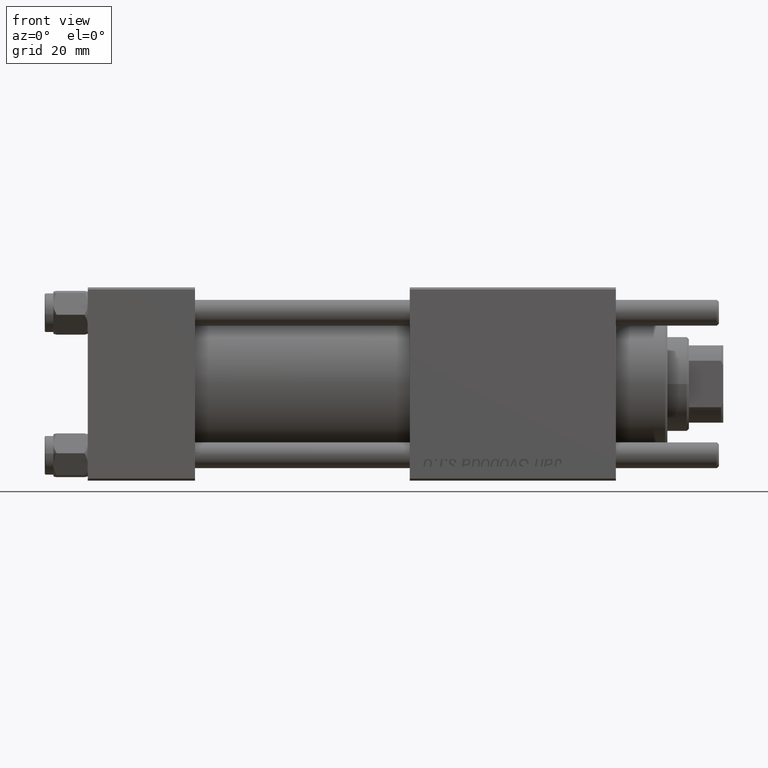
[diagram: clean part render]
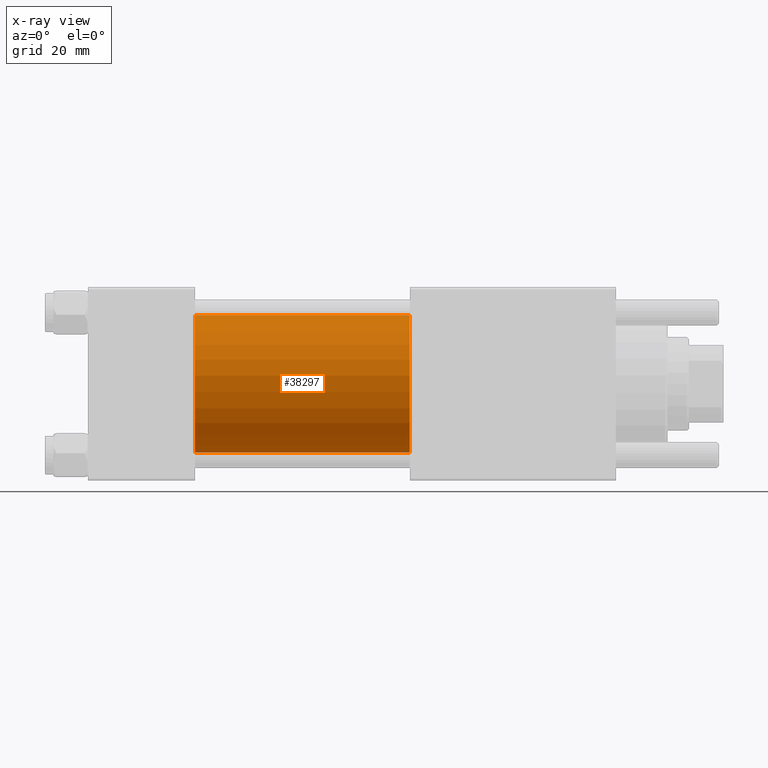
[diagram: x-ray — body ghosted, one internal face saturated and labeled with its STEP entity id]
A machine part, front view, then the same camera in x-ray: the body is ghosted and one INTERNAL B-rep face — a face not visible from any outside direction — is saturated and labeled: STEP entity #38297.
In plain terms, the highlighted cylindrical surface (partial cylindrical patch) has radius 16 mm, axis along (-1, -0, -0).
Its self-contained STEP definition (entity closure, byte-faithful):
#1069 = EDGE_CURVE ( 'NONE', #31190, #48358, #28989, .T. ) ;
#3463 = CARTESIAN_POINT ( 'NONE',  ( 75.00000000000001421, -6.426503353294456087E-16, -16.00000000000000000 ) ) ;
#6409 = CARTESIAN_POINT ( 'NONE',  ( 75.00000000000001421, -2.602085213965210642E-15, 0.000000000000000000 ) ) ;
#6900 = CARTESIAN_POINT ( 'NONE',  ( 25.00000000000000000, -2.602085213965210642E-15, 0.000000000000000000 ) ) ;
#7028 = ORIENTED_EDGE ( 'NONE', *, *, #16426, .T. ) ;
#9658 = ORIENTED_EDGE ( 'NONE', *, *, #15570, .T. ) ;
#11471 = EDGE_LOOP ( 'NONE', ( #9658, #7028, #42278, #21489 ) ) ;
#11833 = VERTEX_POINT ( 'NONE', #55744 ) ;
#11858 = LINE ( 'NONE', #30229, #16097 ) ;
#12720 = AXIS2_PLACEMENT_3D ( 'NONE', #43096, #52309, #25589 ) ;
#15547 = DIRECTION ( 'NONE',  ( 0.000000000000000000, 0.000000000000000000, -1.000000000000000000 ) ) ;
#15570 = EDGE_CURVE ( 'NONE', #44636, #11833, #53105, .T. ) ;
#16097 = VECTOR ( 'NONE', #52074, 1000.000000000000000 ) ;
#16426 = EDGE_CURVE ( 'NONE', #11833, #48358, #42828, .T. ) ;
#18518 = CYLINDRICAL_SURFACE ( 'NONE', #23176, 16.00000000000000000 ) ;
#19085 = DIRECTION ( 'NONE',  ( -1.000000000000000000, -0.000000000000000000, -0.000000000000000000 ) ) ;
#19501 = CARTESIAN_POINT ( 'NONE',  ( 25.00000000000000000, -6.426503353294456087E-16, -16.00000000000000000 ) ) ;
#21489 = ORIENTED_EDGE ( 'NONE', *, *, #55175, .F. ) ;
#21931 = VECTOR ( 'NONE', #47427, 1000.000000000000000 ) ;
#22554 = AXIS2_PLACEMENT_3D ( 'NONE', #6900, #45706, #15547 ) ;
#23176 = AXIS2_PLACEMENT_3D ( 'NONE', #6409, #19085, #49538 ) ;
#23619 = CARTESIAN_POINT ( 'NONE',  ( 25.00000000000000000, -2.602085213965210642E-15, 16.00000000000000000 ) ) ;
#25589 = DIRECTION ( 'NONE',  ( 0.000000000000000000, 0.000000000000000000, -1.000000000000000000 ) ) ;
#28108 = CARTESIAN_POINT ( 'NONE',  ( 75.00000000000001421, -2.602085213965210642E-15, 16.00000000000000000 ) ) ;
#28989 = CIRCLE ( 'NONE', #22554, 16.00000000000000000 ) ;
#30229 = CARTESIAN_POINT ( 'NONE',  ( 75.00000000000001421, -2.602085213965210642E-15, 16.00000000000000000 ) ) ;
#31190 = VERTEX_POINT ( 'NONE', #23619 ) ;
#38297 = ADVANCED_FACE ( 'NONE', ( #41181 ), #18518, .F. ) ;
#41181 = FACE_OUTER_BOUND ( 'NONE', #11471, .T. ) ;
#42278 = ORIENTED_EDGE ( 'NONE', *, *, #1069, .F. ) ;
#42828 = LINE ( 'NONE', #3463, #21931 ) ;
#43096 = CARTESIAN_POINT ( 'NONE',  ( 75.00000000000001421, -2.602085213965210642E-15, 0.000000000000000000 ) ) ;
#44636 = VERTEX_POINT ( 'NONE', #28108 ) ;
#45706 = DIRECTION ( 'NONE',  ( 1.000000000000000000, 0.000000000000000000, 0.000000000000000000 ) ) ;
#47427 = DIRECTION ( 'NONE',  ( -1.000000000000000000, -0.000000000000000000, -0.000000000000000000 ) ) ;
#48358 = VERTEX_POINT ( 'NONE', #19501 ) ;
#49538 = DIRECTION ( 'NONE',  ( 0.000000000000000000, 0.000000000000000000, 1.000000000000000000 ) ) ;
#52074 = DIRECTION ( 'NONE',  ( -1.000000000000000000, -0.000000000000000000, -0.000000000000000000 ) ) ;
#52309 = DIRECTION ( 'NONE',  ( 1.000000000000000000, 0.000000000000000000, 0.000000000000000000 ) ) ;
#53105 = CIRCLE ( 'NONE', #12720, 16.00000000000000000 ) ;
#55175 = EDGE_CURVE ( 'NONE', #44636, #31190, #11858, .T. ) ;
#55744 = CARTESIAN_POINT ( 'NONE',  ( 75.00000000000001421, -6.426503353294456087E-16, -16.00000000000000000 ) ) ;